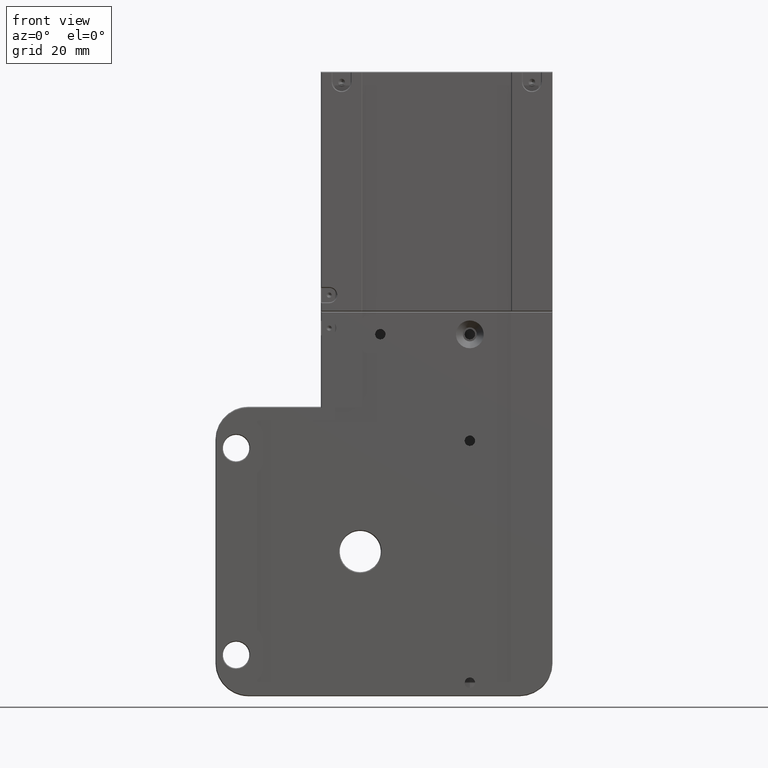
[diagram: clean part render]
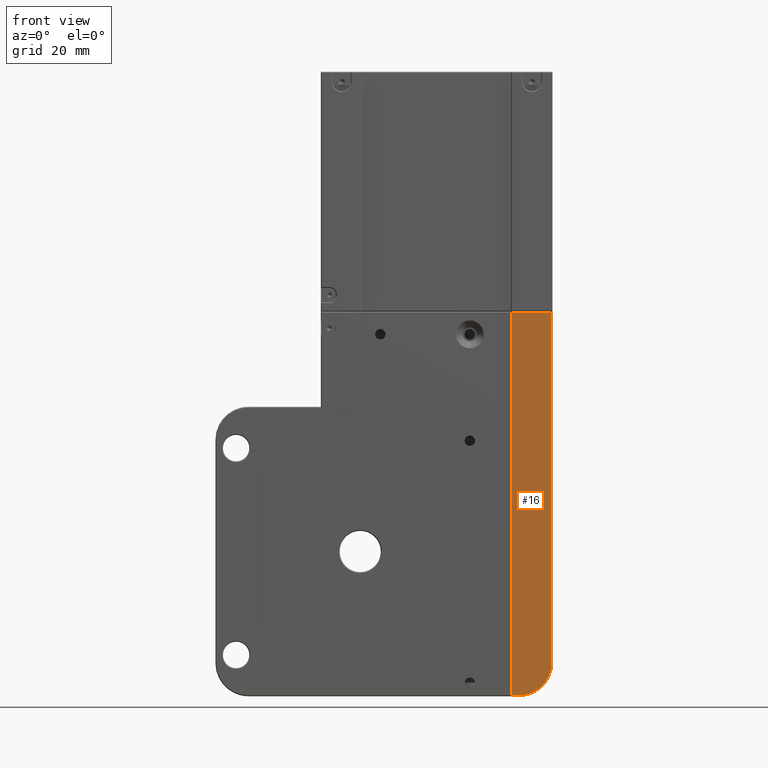
[diagram: same view with one face highlighted and labeled with its STEP entity id]
A machine part, front view. The second image highlights one B-rep face of the part: STEP entity #16.
In plain terms, the highlighted planar face has unit normal (0, -1, 0).
Its self-contained STEP definition (entity closure, byte-faithful):
#16 = ADVANCED_FACE ( 'NONE', ( #41195 ), #1674, .T. ) ;
#1158 = VERTEX_POINT ( 'NONE', #53150 ) ;
#1651 = DIRECTION ( 'NONE',  ( 0.000000000000000000, 0.000000000000000000, -1.000000000000000000 ) ) ;
#1674 = PLANE ( 'NONE',  #21301 ) ;
#2075 = CARTESIAN_POINT ( 'NONE',  ( 40.19068927312799389, -18.46812465377170298, 50.00000000000000000 ) ) ;
#3149 = EDGE_CURVE ( 'NONE', #10287, #1158, #13035, .T. ) ;
#4780 = CARTESIAN_POINT ( 'NONE',  ( 30.39068927312805002, -18.46812465377170298, 134.8000000000000114 ) ) ;
#8151 = CARTESIAN_POINT ( 'NONE',  ( 30.39068927312810331, -18.46812465377170298, 42.20000000000000284 ) ) ;
#10131 = DIRECTION ( 'NONE',  ( 1.435633221498046052E-16, 0.000000000000000000, -1.000000000000000000 ) ) ;
#10287 = VERTEX_POINT ( 'NONE', #2075 ) ;
#10684 = VECTOR ( 'NONE', #10131, 1000.000000000000000 ) ;
#11010 = EDGE_CURVE ( 'NONE', #42398, #36361, #35484, .T. ) ;
#13035 = LINE ( 'NONE', #42805, #43586 ) ;
#15194 = CARTESIAN_POINT ( 'NONE',  ( -0.8593107268719599734, -18.46812465377170298, 77.00000000000000000 ) ) ;
#17444 = EDGE_CURVE ( 'NONE', #29593, #42398, #32062, .T. ) ;
#17655 = EDGE_CURVE ( 'NONE', #1158, #29593, #21041, .T. ) ;
#18333 = EDGE_CURVE ( 'NONE', #36361, #10287, #35713, .T. ) ;
#21041 = LINE ( 'NONE', #51098, #50987 ) ;
#21301 = AXIS2_PLACEMENT_3D ( 'NONE', #15194, #32816, #37420 ) ;
#26730 = ORIENTED_EDGE ( 'NONE', *, *, #17655, .T. ) ;
#29593 = VERTEX_POINT ( 'NONE', #4780 ) ;
#32062 = LINE ( 'NONE', #49690, #10684 ) ;
#32221 = DIRECTION ( 'NONE',  ( 0.000000000000000000, -1.000000000000000000, 0.000000000000000000 ) ) ;
#32474 = CARTESIAN_POINT ( 'NONE',  ( 32.39068927312805357, -18.46812465377170298, 42.20000000000000284 ) ) ;
#32816 = DIRECTION ( 'NONE',  ( 0.000000000000000000, -1.000000000000000000, 0.000000000000000000 ) ) ;
#33796 = ORIENTED_EDGE ( 'NONE', *, *, #11010, .T. ) ;
#35484 = LINE ( 'NONE', #38965, #46426 ) ;
#35713 = CIRCLE ( 'NONE', #50444, 7.800000000000001599 ) ;
#36361 = VERTEX_POINT ( 'NONE', #32474 ) ;
#36556 = CARTESIAN_POINT ( 'NONE',  ( 32.39068927312805357, -18.46812465377170298, 50.00000000000000000 ) ) ;
#37420 = DIRECTION ( 'NONE',  ( 0.000000000000000000, 0.000000000000000000, -1.000000000000000000 ) ) ;
#38166 = DIRECTION ( 'NONE',  ( 2.052657521041429724E-16, 0.000000000000000000, 1.000000000000000000 ) ) ;
#38965 = CARTESIAN_POINT ( 'NONE',  ( 32.39068927312805357, -18.46812465377170298, 42.20000000000000284 ) ) ;
#40158 = ORIENTED_EDGE ( 'NONE', *, *, #17444, .T. ) ;
#40894 = ORIENTED_EDGE ( 'NONE', *, *, #3149, .T. ) ;
#41195 = FACE_OUTER_BOUND ( 'NONE', #56623, .T. ) ;
#42398 = VERTEX_POINT ( 'NONE', #8151 ) ;
#42805 = CARTESIAN_POINT ( 'NONE',  ( 40.19068927312799389, -18.46812465377170298, 77.00000000000000000 ) ) ;
#43586 = VECTOR ( 'NONE', #38166, 1000.000000000000000 ) ;
#46426 = VECTOR ( 'NONE', #56600, 1000.000000000000000 ) ;
#49690 = CARTESIAN_POINT ( 'NONE',  ( 30.39068927312805002, -18.46812465377170298, 187.0000000000000000 ) ) ;
#50444 = AXIS2_PLACEMENT_3D ( 'NONE', #36556, #32221, #1651 ) ;
#50987 = VECTOR ( 'NONE', #56300, 1000.000000000000000 ) ;
#51098 = CARTESIAN_POINT ( 'NONE',  ( -0.8593107268719599734, -18.46812465377170298, 134.8000000000000114 ) ) ;
#53150 = CARTESIAN_POINT ( 'NONE',  ( 40.19068927312805073, -18.46812465377170298, 134.8000000000000114 ) ) ;
#54942 = ORIENTED_EDGE ( 'NONE', *, *, #18333, .T. ) ;
#56300 = DIRECTION ( 'NONE',  ( -1.000000000000000000, 0.000000000000000000, 0.000000000000000000 ) ) ;
#56600 = DIRECTION ( 'NONE',  ( 1.000000000000000000, 0.000000000000000000, 0.000000000000000000 ) ) ;
#56623 = EDGE_LOOP ( 'NONE', ( #40894, #26730, #40158, #33796, #54942 ) ) ;